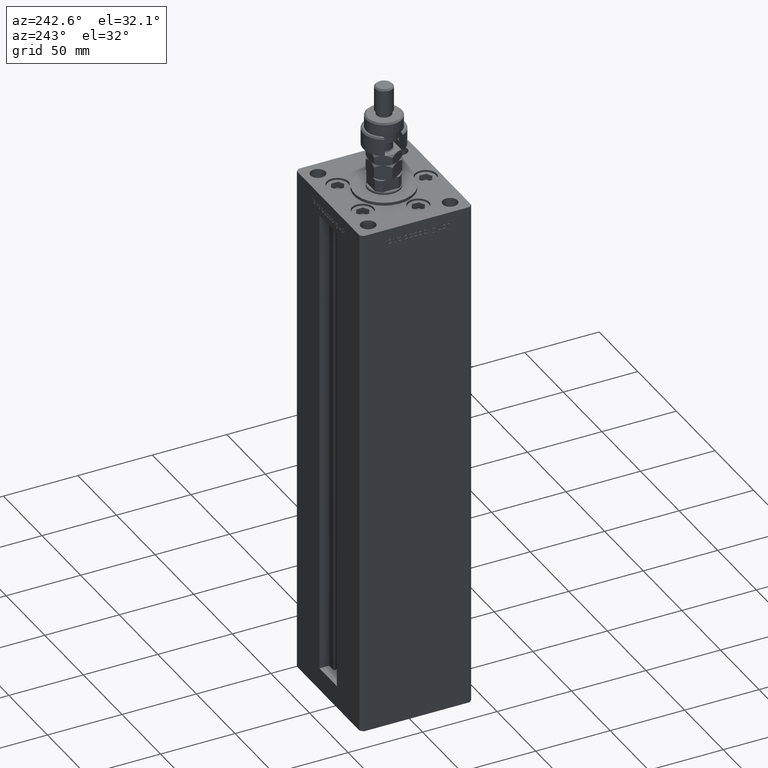
[diagram: clean part render]
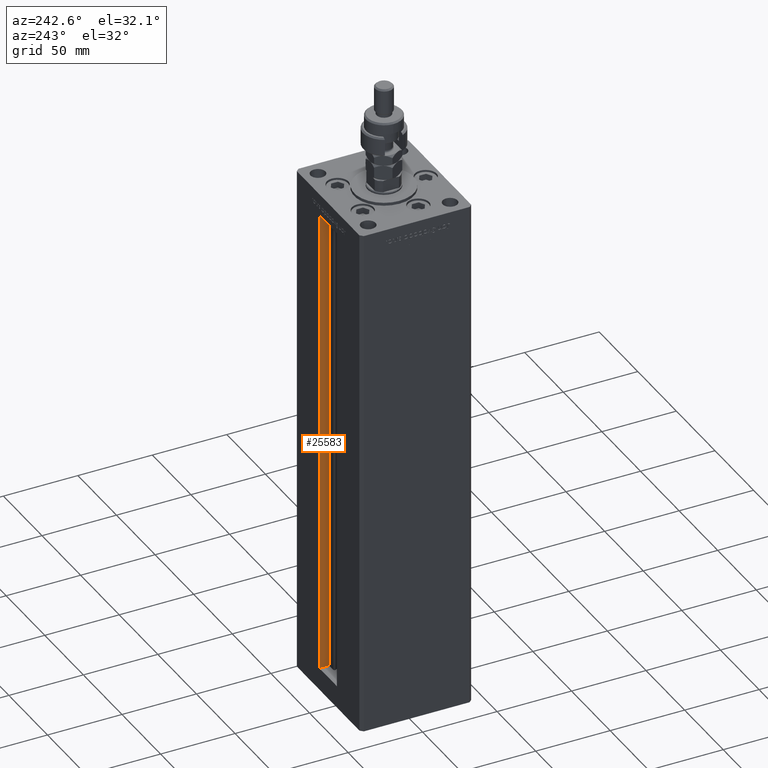
[diagram: same view with one face highlighted and labeled with its STEP entity id]
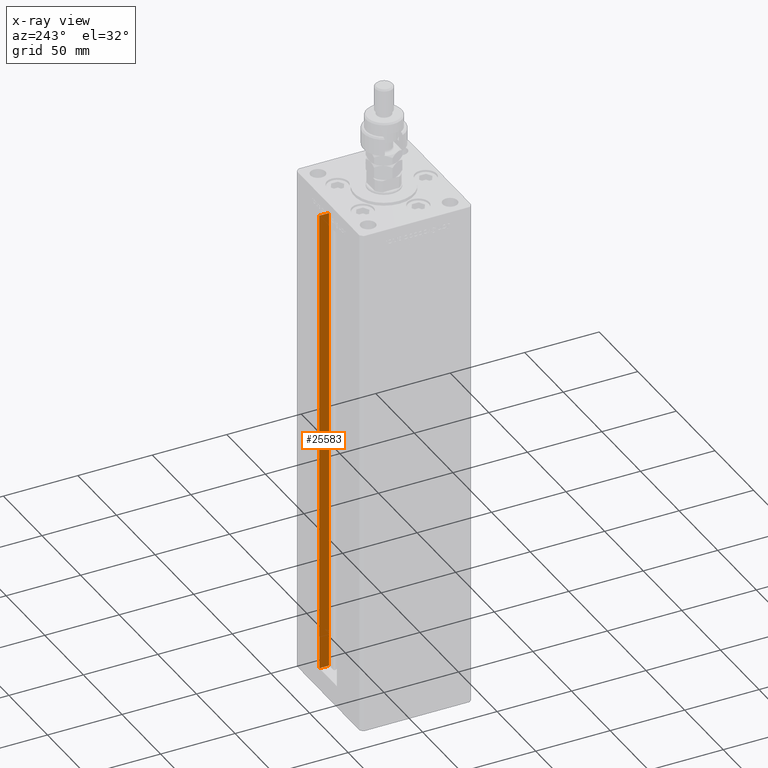
[diagram: x-ray of the same camera — body ghosted, the highlighted face saturated]
A machine part, auxiliary view. The second image highlights one B-rep face of the part: STEP entity #25583.
The next image is the same camera in x-ray: the body ghosted, the highlighted face saturated — about 0% of this face is hidden behind the body in this view.
In plain terms, the highlighted planar face has unit normal (1, 0, 0).
Its self-contained STEP definition (entity closure, byte-faithful):
#931 = VECTOR ( 'NONE', #30378, 1000.000000000000000 ) ;
#1028 = VERTEX_POINT ( 'NONE', #52145 ) ;
#1267 = EDGE_CURVE ( 'NONE', #6118, #1028, #38466, .T. ) ;
#3918 = EDGE_LOOP ( 'NONE', ( #4597, #18247, #34920, #40124 ) ) ;
#4212 = LINE ( 'NONE', #4746, #39239 ) ;
#4597 = ORIENTED_EDGE ( 'NONE', *, *, #28507, .F. ) ;
#4746 = CARTESIAN_POINT ( 'NONE',  ( 11.25000000000000000, 30.99999999999999289, 0.000000000000000000 ) ) ;
#4924 = VERTEX_POINT ( 'NONE', #26884 ) ;
#6118 = VERTEX_POINT ( 'NONE', #54876 ) ;
#6593 = EDGE_CURVE ( 'NONE', #6118, #20624, #4212, .T. ) ;
#9424 = CARTESIAN_POINT ( 'NONE',  ( 11.25000000000000000, 37.50000000000000000, 0.000000000000000000 ) ) ;
#10899 = VECTOR ( 'NONE', #21633, 1000.000000000000000 ) ;
#11611 = CARTESIAN_POINT ( 'NONE',  ( 11.25000000000000000, 30.99999999999999289, 0.000000000000000000 ) ) ;
#11980 = EDGE_CURVE ( 'NONE', #4924, #1028, #28276, .T. ) ;
#12164 = DIRECTION ( 'NONE',  ( 0.000000000000000000, 0.000000000000000000, -1.000000000000000000 ) ) ;
#14321 = AXIS2_PLACEMENT_3D ( 'NONE', #11611, #49445, #12164 ) ;
#14408 = VECTOR ( 'NONE', #49720, 1000.000000000000000 ) ;
#16589 = FACE_OUTER_BOUND ( 'NONE', #3918, .T. ) ;
#17183 = LINE ( 'NONE', #46954, #10899 ) ;
#17325 = CARTESIAN_POINT ( 'NONE',  ( 11.25000000000000000, 30.99999999999999289, 0.000000000000000000 ) ) ;
#18247 = ORIENTED_EDGE ( 'NONE', *, *, #6593, .F. ) ;
#20624 = VERTEX_POINT ( 'NONE', #9424 ) ;
#21633 = DIRECTION ( 'NONE',  ( -0.000000000000000000, -0.000000000000000000, 1.000000000000000000 ) ) ;
#25206 = PLANE ( 'NONE',  #14321 ) ;
#25583 = ADVANCED_FACE ( 'NONE', ( #16589 ), #25206, .F. ) ;
#26884 = CARTESIAN_POINT ( 'NONE',  ( 11.24999999999999289, 37.50000000000000000, 318.5000000000000000 ) ) ;
#28276 = LINE ( 'NONE', #32735, #14408 ) ;
#28507 = EDGE_CURVE ( 'NONE', #20624, #4924, #17183, .T. ) ;
#30378 = DIRECTION ( 'NONE',  ( -0.000000000000000000, -0.000000000000000000, 1.000000000000000000 ) ) ;
#32735 = CARTESIAN_POINT ( 'NONE',  ( 11.25000000000000000, 0.000000000000000000, 318.5000000000000000 ) ) ;
#33372 = DIRECTION ( 'NONE',  ( 0.000000000000000000, 1.000000000000000000, 0.000000000000000000 ) ) ;
#34920 = ORIENTED_EDGE ( 'NONE', *, *, #1267, .T. ) ;
#38466 = LINE ( 'NONE', #17325, #931 ) ;
#39239 = VECTOR ( 'NONE', #33372, 1000.000000000000000 ) ;
#40124 = ORIENTED_EDGE ( 'NONE', *, *, #11980, .F. ) ;
#46954 = CARTESIAN_POINT ( 'NONE',  ( 11.25000000000000000, 37.50000000000000000, 0.000000000000000000 ) ) ;
#49445 = DIRECTION ( 'NONE',  ( 1.000000000000000000, -0.000000000000000000, 0.000000000000000000 ) ) ;
#49720 = DIRECTION ( 'NONE',  ( -0.000000000000000000, -1.000000000000000000, 0.000000000000000000 ) ) ;
#52145 = CARTESIAN_POINT ( 'NONE',  ( 11.25000000000000000, 30.99999999999999289, 318.5000000000000000 ) ) ;
#54876 = CARTESIAN_POINT ( 'NONE',  ( 11.25000000000000000, 30.99999999999999289, 0.000000000000000000 ) ) ;